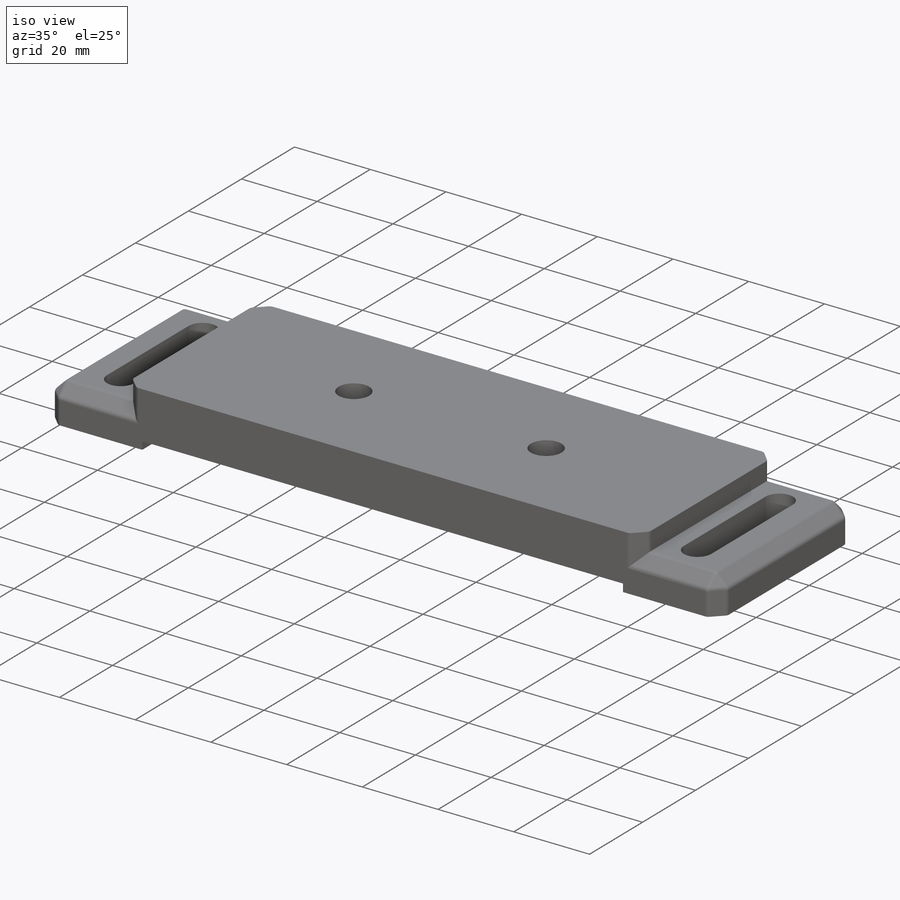
[diagram: iso view]
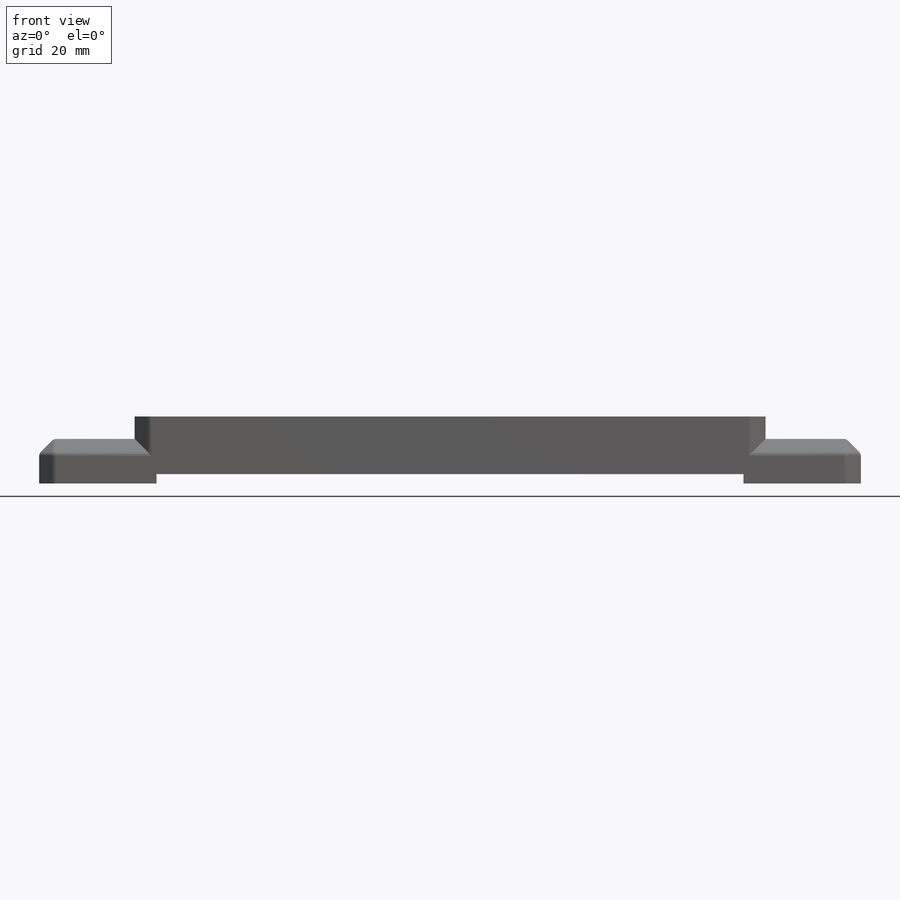
[diagram: front view]
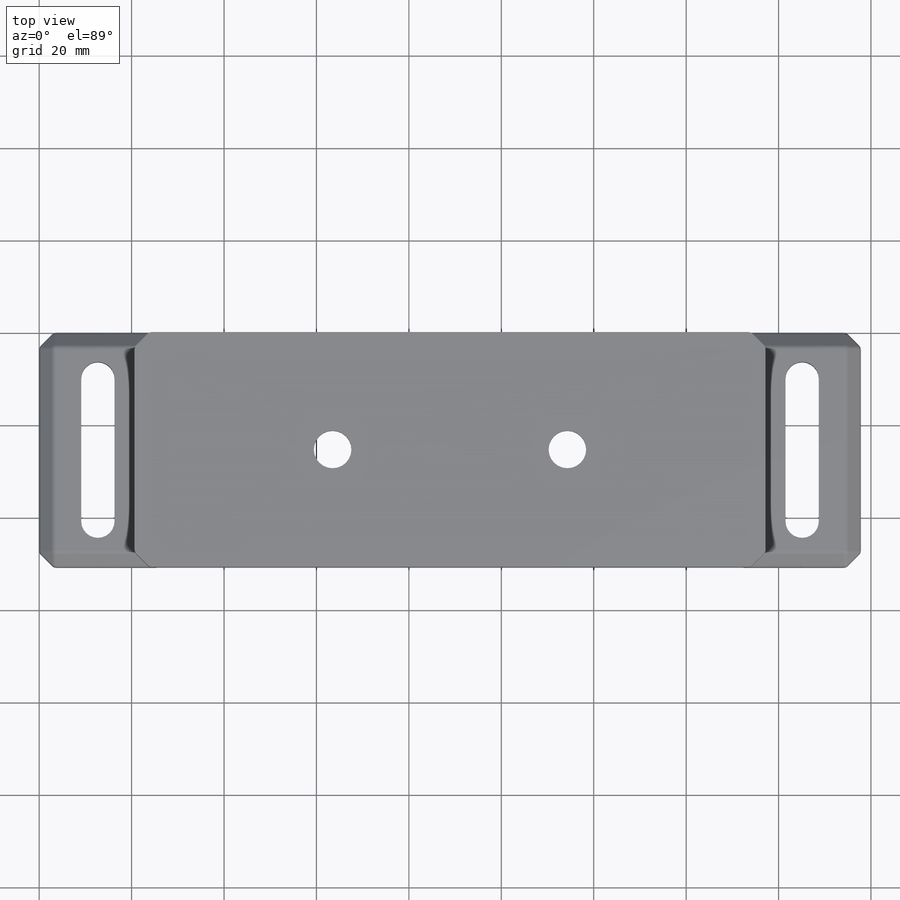
[diagram: top view]
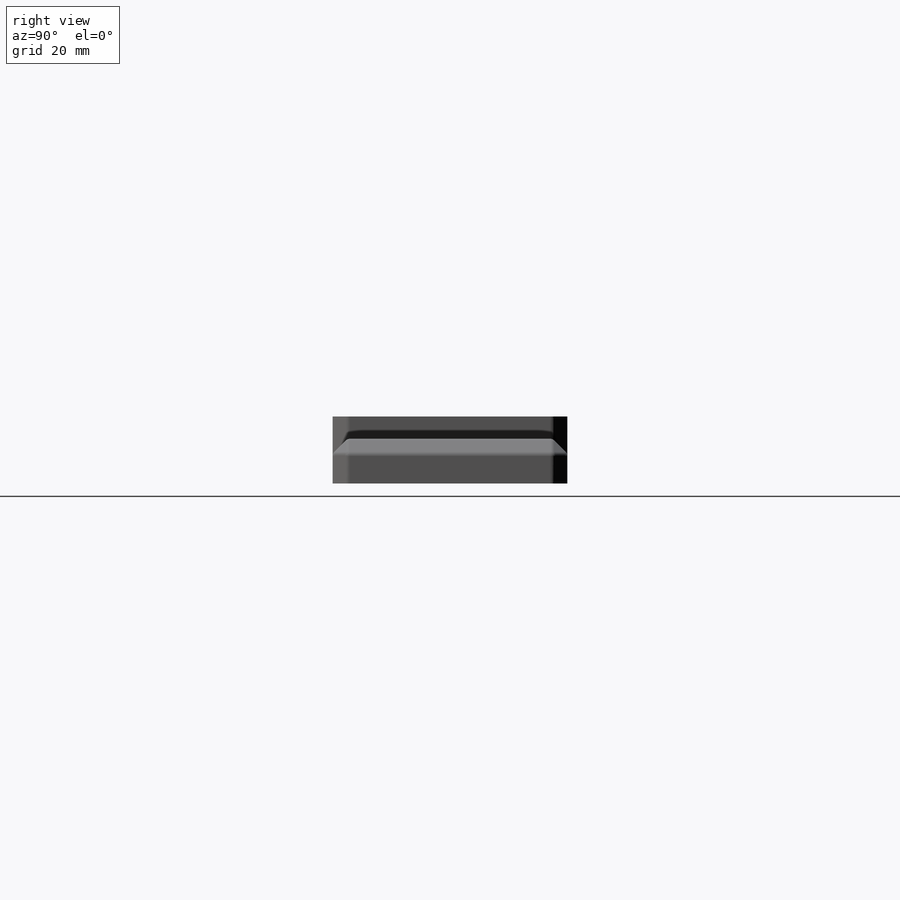
[diagram: right view]
SOLIDWORKS PART (.sldprt)
format: sldprt  version: not decoded by parser v0  size: 837,632 bytes
history: native  units: mm
features: sketch x6, cut_extrude x5, material x1, extrude x1, chamfer x1, fillet x1 + 1 further entry (+13 scaffold rows collapsed)
feature tree (29):
  scaffold x13  (default folders/planes/origin — collapsed)
  material  "Material <not specified>"
  "Origin"  ID=-1
  sketch  "Sketch1"  dims[D1=14.478mm D2=177.8mm]
  extrude  "Boss-Extrude1"  Depth=50.8mm
  sketch  "Sketch2"  dims[D1=9.652mm D2=136.525mm D3=20.6502mm D4=38.5318mm]
  cut_extrude  "Cut-Extrude1"  [1 undecoded]
  chamfer  "Chamfer1"  Distance=3.175mm Angle=45deg
  fillet  "Fillet1"  Radius=1.27mm
  sketch  "Sketch3"  dims[c1.D2=3.6068mm c1.D3=~3.611983mm c1.D4=3.6068mm c1.D5=3.6068mm c2.D4=3.6068mm c2.D1=7.2136mm c2.D2=30.8864mm c2.D3=30.8864mm c2.D6=7.2136mm c2.D7=25.4mm c2.D8=25.4mm c2.D9=12.7mm c2.D10=12.7mm]
  cut_extrude  "Cut-Extrude2"  Depth=50.8mm
  sketch  "Sketch4"  dims[D1=13.208mm D2=13.208mm D3=88.9mm D4=25.4mm D5=25.4mm D6=25.4mm D7=25.4mm]
  cut_extrude  "Cut-Extrude3"  Depth=9.652mm
  sketch  "Sketch5"  dims[D1=8.128mm D2=8.128mm D3=63.5mm D4=50.8mm D5=25.4mm D6=25.4mm]
  cut_extrude  "Cut-Extrude4"  [1 undecoded]
  sketch  "Sketch6"  dims[c1.D1=2.032mm c1.D2=25.4mm c1.D3=25.4mm c2.D2=25.4mm c2.D3=25.4mm]
  cut_extrude  "Cut-Extrude5"  [1 undecoded]
decode coverage: 11 of 14 modeling features carry decoded parameters; 1 rows unclassified (native names shown)
note: ~ marks probable driven/reference dimensions
note: 3 parameter values undecoded
summary: no parameter record found for 3 features
note: suppression state not decoded; provenance and decode notes live in map.json
